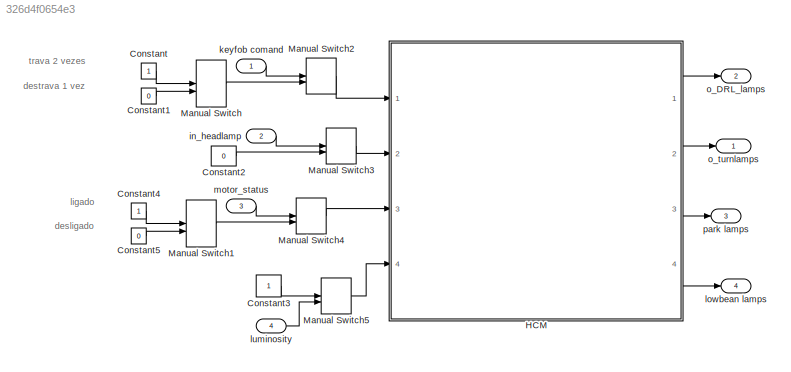
MODEL slx_326d4f0654e3
KIND model
CONFIG AbsTol = auto
CONFIG EnableMultiTasking = off
CONFIG FixedStep = 0.1
CONFIG MaxStep = auto
CONFIG MinStep = auto
CONFIG RelTol = 1e-3
CONFIG SampleTimeConstraint = Unconstrained
CONFIG Solver = FixedStepDiscrete
CONFIG SolverName = FixedStepDiscrete
CONFIG StartTime = 0.0
CONFIG StopTime = inf
BLOCK [Constant] Constant
BLOCK [Constant] Constant1
  Value = 0
BLOCK [Constant] Constant2
  Value = 0
BLOCK [Constant] Constant3
BLOCK [Constant] Constant4
BLOCK [Constant] Constant5
  Value = 0
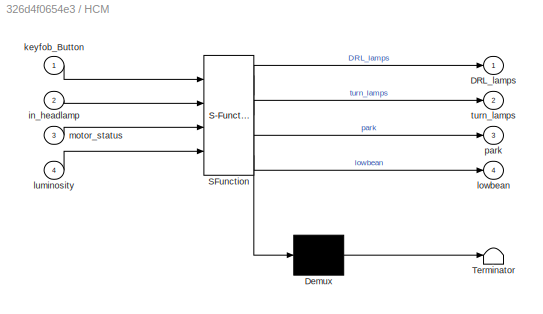
BLOCK [SubSystem] HCM
  ErrorFcn = Stateflow.Translate.translate
  PermitHierarchicalResolution = ExplicitOnly
  Ports = [4, 4]
  RequestExecContextInheritance = off
  SFBlockType = Chart
  TreatAsAtomicUnit = on
BLOCK [Demux] HCM/ Demux 
  Outputs = 1
  Ports = [1, 1]
BLOCK [S-Function] HCM/ SFunction 
  EnableBusSupport = on
  FunctionName = sf_sfun
  PortCounts = [4 5]
  Ports = [4, 5]
  SFcnIsStateOwnerBlock = off
  SFunctionDeploymentMode = off
  Tag = Stateflow S-Function 6
BLOCK [Terminator] HCM/ Terminator 
BLOCK [Outport] HCM/DRL_lamps
  IconDisplay = Port number
BLOCK [Inport] HCM/in_headlamp
  IconDisplay = Port number
  Port = 2
BLOCK [Inport] HCM/keyfob_Button
  IconDisplay = Port number
BLOCK [Outport] HCM/lowbean
  IconDisplay = Port number
  Port = 4
BLOCK [Inport] HCM/luminosity
  IconDisplay = Port number
  Port = 4
BLOCK [Inport] HCM/motor_status
  IconDisplay = Port number
  Port = 3
BLOCK [Outport] HCM/park
  IconDisplay = Port number
  Port = 3
BLOCK [Outport] HCM/turn_lamps
  IconDisplay = Port number
  Port = 2
BLOCK [ManualSwitch] Manual Switch
BLOCK [ManualSwitch] Manual Switch1
  CurrentSetting = 0
BLOCK [ManualSwitch] Manual Switch2
BLOCK [ManualSwitch] Manual Switch3
BLOCK [ManualSwitch] Manual Switch4
BLOCK [ManualSwitch] Manual Switch5
  CurrentSetting = 0
BLOCK [Inport] in_headlamp
  IconDisplay = Port number
  Port = 2
BLOCK [Inport] keyfob comand
  IconDisplay = Port number
BLOCK [Outport] lowbean lamps
  IconDisplay = Port number
  Port = 4
  SignalName = lowbean lamps
BLOCK [Inport] luminosity
  IconDisplay = Port number
  Port = 4
BLOCK [Inport] motor_status
  IconDisplay = Port number
  Port = 3
BLOCK [Outport] o_DRL_lamps
  IconDisplay = Port number
  Port = 2
BLOCK [Outport] o_turnlamps
  IconDisplay = Port number
BLOCK [Outport] park lamps
  IconDisplay = Port number
  Port = 3
  SignalName = park lamps
ANNOTATION (root): desligado
ANNOTATION (root): destrava 1 vez
ANNOTATION (root): ligado
ANNOTATION (root): trava 2 vezes
LINE Constant1:1 -> Manual Switch:2
LINE Constant2:1 -> Manual Switch3:2
LINE Constant3:1 -> Manual Switch5:1
LINE Constant4:1 -> Manual Switch1:1
LINE Constant5:1 -> Manual Switch1:2
LINE Constant:1 -> Manual Switch:1
LINE HCM:1 -> o_DRL_lamps:1
LINE HCM:2 -> o_turnlamps:1
LINE HCM:3 -> park lamps:1
LINE HCM:4 -> lowbean lamps:1
LINE Manual Switch1:1 -> Manual Switch4:2
LINE Manual Switch2:1 -> HCM:1
LINE Manual Switch3:1 -> HCM:2
LINE Manual Switch4:1 -> HCM:3
LINE Manual Switch5:1 -> HCM:4
LINE Manual Switch:1 -> Manual Switch2:2
LINE in_headlamp:1 -> Manual Switch3:1
LINE keyfob comand:1 -> Manual Switch2:1
LINE luminosity:1 -> Manual Switch5:2
LINE motor_status:1 -> Manual Switch4:1
CHART HCM states=11 transitions=11
  STATE_LABEL 'stateGeral'
  STATE_LABEL 'Control_DRL_and_Turn_Lamps'
  STATE_LABEL 'default\n\nentry:\n%o_headlamp=in_headlamp;\nturn_lamps=0; %turn_lamps desligadas\nr_aux=0;\nright_aux=0;\nleft_aux=1;\nkeyfob_Button_ant=keyfob_Button;\nduring:\n%o_headlamp=in_headlamp;\nif(keyfob_Button_ant==keyfob_Button)\n    keyfob_Button_ant=keyfob_Button;\nelseif(keyfob_Button_ant~=keyfob_Button)\n    r_aux=1;\nend\n'  <repeated x3 — deduplicated; at blocks: HCM>
  STATE_LABEL 'Blinck_turn_lamps_twice\nentry:\n    turn_lamps=1;\nduring:\nleft_aux=1;\nexit:\nDRL_lamps=0;\n'
  STATE_LABEL 'blinck_turn_lamps_once\n\nentry:\n    turn_lamps=1;\nduring:\nright_aux=1;\n'
  STATE_LABEL 'Blinck_turn_lamps_twice_off\n\nentry:\nturn_lamps=0;\nduring:\nleft_aux=2;'
  STATE_LABEL 'Turn_lamps_off\nentry:\nturn_lamps=0;\nduring:\nright_aux=2;\n'
  STATE_LABEL 'Blinck_turn_lamps_twice_on\n\nentry:\nturn_lamps=1;\nduring:\nleft_aux=3;'
  STATE_LABEL 'DRL_ON\nentry:\nDRL_lamps=1;\nduring:\nright_aux=3;\nexit:\nr_aux=0;\ndown_aux=0;\n'
  STATE_LABEL 'Blinck_turn_lamps_twice1\nentry:\n    turn_lamps=1;\n    r_aux=0;\nduring:\nleft_aux=4;\ndown_aux=0;'
  STATE_LABEL '[keyfob_Button==0 && r_aux==1]'
  STATE_LABEL '[keyfob_Button==1 &&r_aux==1]'
  STATE_LABEL '[after(2,sec) && left_aux==1]'
  STATE_LABEL '[after(2,sec) && right_aux==1]'
  STATE_LABEL '[after(2,sec) && left_aux==4]'
  STATE_LABEL '[after(2,sec) && right_aux==3 ]'
  STATE_LABEL '[after(2,sec) && left_aux==2]'
  STATE_LABEL '[after(2,sec) && right_aux==2]'
  STATE_LABEL '[after(2,sec) && left_aux==3]'
  STATE_LABEL 'HEADLAMP_STATUS\nentry:\npark=0;\nlowbean=0;\nduring:\nif(in_headlamp==0)\n    park=0;\n    lowbean=0;\nelseif(in_headlamp==1)\n    lowbean=0;\n    park=1;\nelseif(in_headlamp==2)\n    lowbean=1;\n    park=0;\nelseif(in_headlamp==3)\n    if(luminosity>=4) %muito claro\n        lowbean=0;\n        park=0;\n    end\n    if(luminosity>=2 && luminosity<4) %penumbra\n        lowbean=0;\n        park=1;\n    end\n    if(lumin...<+78ch>'
  STATE_LABEL 'Control_DRL_and_Turn_Lamps'
  STATE_LABEL 'Blinck_turn_lamps_twice\nentry:\n    turn_lamps=1;\nduring:\nleft_aux=1;\nexit:\nDRL_lamps=0;\n'
  STATE_LABEL 'blinck_turn_lamps_once\n\nentry:\n    turn_lamps=1;\nduring:\nright_aux=1;\n'
  STATE_LABEL 'Blinck_turn_lamps_twice_off\n\nentry:\nturn_lamps=0;\nduring:\nleft_aux=2;'
  STATE_LABEL 'Turn_lamps_off\nentry:\nturn_lamps=0;\nduring:\nright_aux=2;\n'
  STATE_LABEL 'Blinck_turn_lamps_twice_on\n\nentry:\nturn_lamps=1;\nduring:\nleft_aux=3;'
  STATE_LABEL 'DRL_ON\nentry:\nDRL_lamps=1;\nduring:\nright_aux=3;\nexit:\nr_aux=0;\ndown_aux=0;\n'
  STATE_LABEL 'Blinck_turn_lamps_twice1\nentry:\n    turn_lamps=1;\n    r_aux=0;\nduring:\nleft_aux=4;\ndown_aux=0;'
  STATE_LABEL '[keyfob_Button==0 && r_aux==1]'
  STATE_LABEL '[keyfob_Button==1 &&r_aux==1]'
  STATE_LABEL '[after(2,sec) && left_aux==1]'
  STATE_LABEL '[after(2,sec) && right_aux==1]'
  STATE_LABEL '[after(2,sec) && left_aux==4]'
  STATE_LABEL '[after(2,sec) && right_aux==3 ]'
  STATE_LABEL '[after(2,sec) && left_aux==2]'
  STATE_LABEL '[after(2,sec) && right_aux==2]'
  STATE_LABEL '[after(2,sec) && left_aux==3]'
  STATE_LABEL 'Blinck_turn_lamps_twice\nentry:\n    turn_lamps=1;\nduring:\nleft_aux=1;\nexit:\nDRL_lamps=0;\n'
